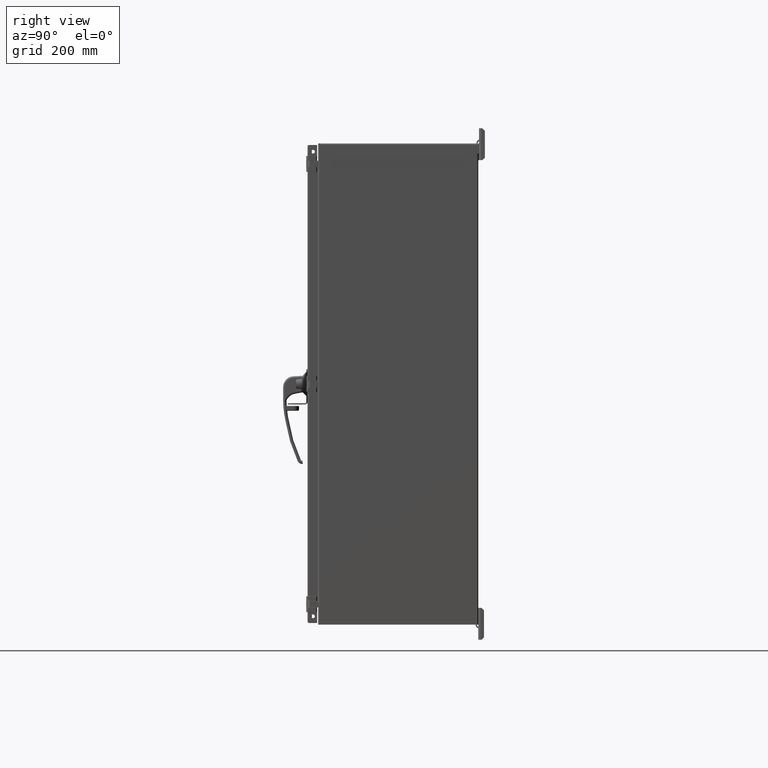
[diagram: clean part render]
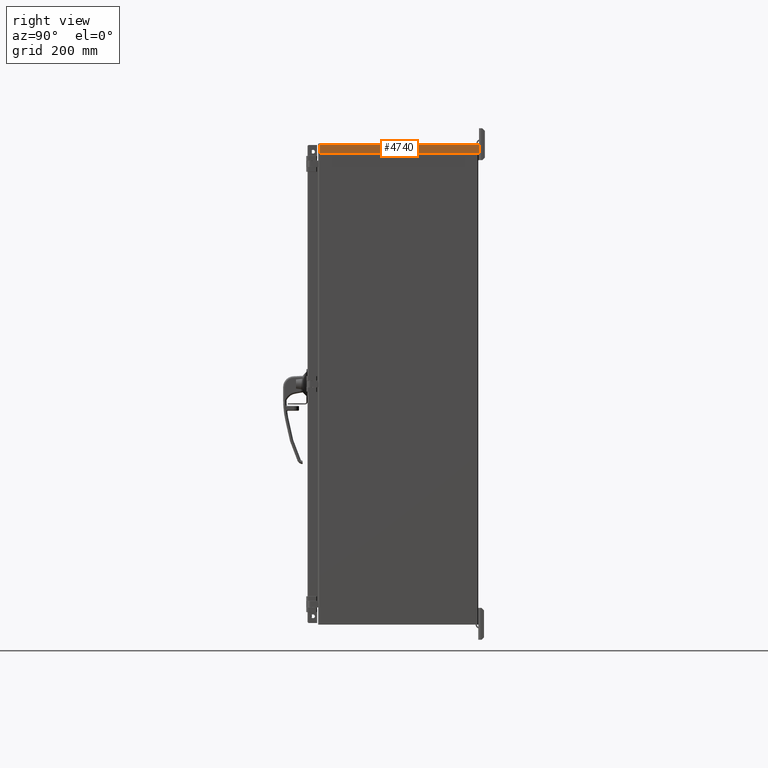
[diagram: same view with one face highlighted and labeled with its STEP entity id]
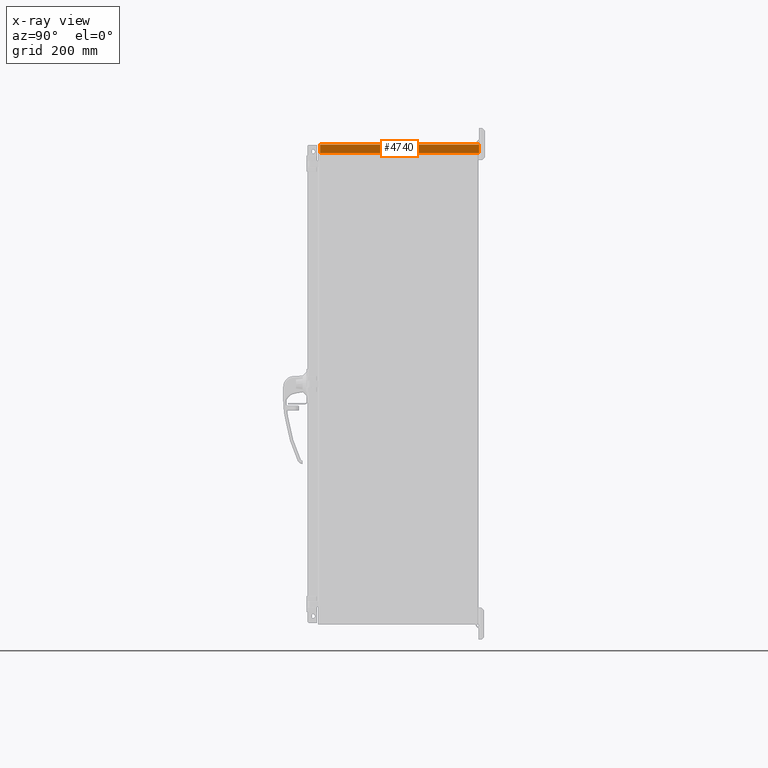
[diagram: x-ray of the same camera — body ghosted, the highlighted face saturated]
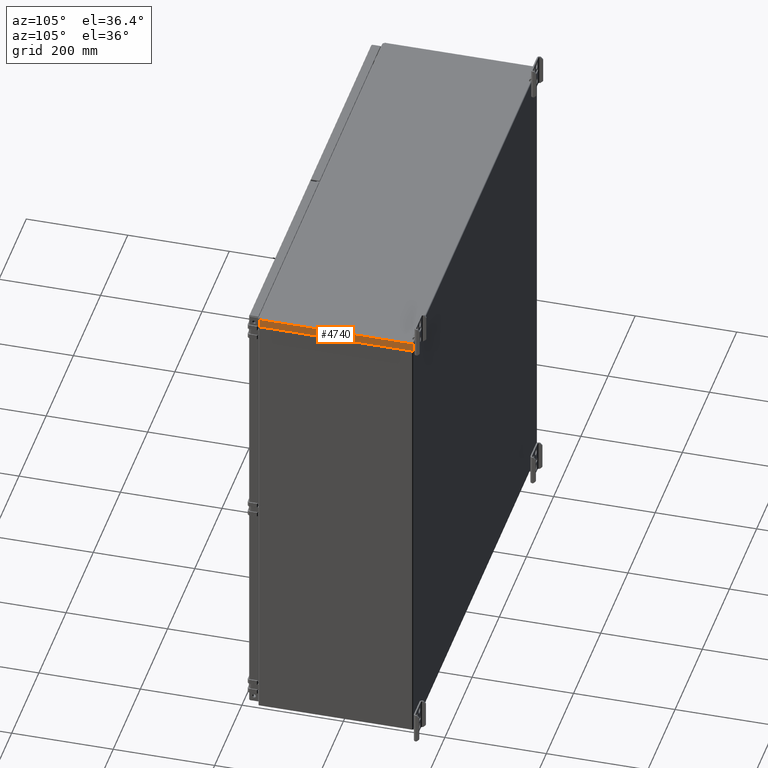
[diagram: same view with one face highlighted and labeled with its STEP entity id]
A machine part, right view. The second image highlights one B-rep face of the part: STEP entity #4740.
The next image is the same camera in x-ray: the body ghosted, the highlighted face saturated — about 0% of this face is hidden behind the body in this view.
A second angle (auxiliary view) of the same face is appended — the face is thin or edge-on in the first view.
In plain terms, the highlighted planar face has unit normal (1, 0, -0).
Its self-contained STEP definition (entity closure, byte-faithful):
#4740 = ADVANCED_FACE( '', ( #9497 ), #9498, .T. );
#9497 = FACE_OUTER_BOUND( '', #18870, .T. );
#9498 = PLANE( '', #18871 );
#18870 = EDGE_LOOP( '', ( #33377, #33378, #33379, #33380, #33381 ) );
#18871 = AXIS2_PLACEMENT_3D( '', #33382, #33383, #33384 );
#33377 = ORIENTED_EDGE( '', *, *, #38304, .F. );
#33378 = ORIENTED_EDGE( '', *, *, #38418, .T. );
#33379 = ORIENTED_EDGE( '', *, *, #36966, .T. );
#33380 = ORIENTED_EDGE( '', *, *, #38323, .T. );
#33381 = ORIENTED_EDGE( '', *, *, #38406, .T. );
#33382 = CARTESIAN_POINT( '', ( 459.120875000000, 152.400000000000, 0.127202221065881 ) );
#33383 = DIRECTION( '', ( 1.00000000000000, 0.000000000000000, -6.12323399573677E-017 ) );
#33384 = DIRECTION( '', ( -6.12323399573677E-017, 0.000000000000000, -1.00000000000000 ) );
#36966 = EDGE_CURVE( '', #43571, #43568, #43572, .T. );
#38304 = EDGE_CURVE( '', #45228, #45224, #45230, .F. );
#38323 = EDGE_CURVE( '', #43568, #39685, #45249, .T. );
#38406 = EDGE_CURVE( '', #39685, #45224, #45332, .T. );
#38418 = EDGE_CURVE( '', #45228, #43571, #45346, .T. );
#39685 = VERTEX_POINT( '', #48599 );
#43568 = VERTEX_POINT( '', #57931 );
#43571 = VERTEX_POINT( '', #57935 );
#43572 = LINE( '', #57936, #57937 );
#45224 = VERTEX_POINT( '', #61854 );
#45228 = VERTEX_POINT( '', #61859 );
#45230 = LINE( '', #61862, #61863 );
#45249 = LINE( '', #61894, #61895 );
#45332 = LINE( '', #62003, #62004 );
#45346 = LINE( '', #62021, #62022 );
#48599 = CARTESIAN_POINT( '', ( 459.120875000000, 150.063200000000, -0.812800000000000 ) );
#57931 = CARTESIAN_POINT( '', ( 459.120875000000, 152.400000000000, -0.812800000000000 ) );
#57935 = CARTESIAN_POINT( '', ( 459.120875000000, 152.400000000000, -17.5260000000006 ) );
#57936 = CARTESIAN_POINT( '', ( 459.120875000000, 152.400000000000, 0.127202221065881 ) );
#57937 = VECTOR( '', #64573, 1000.00000000000 );
#61854 = CARTESIAN_POINT( '', ( 459.120875000000, -150.114000000000, -0.812800000000000 ) );
#61859 = CARTESIAN_POINT( '', ( 459.120875000000, -150.114000000000, -17.5260000000006 ) );
#61862 = CARTESIAN_POINT( '', ( 459.120875000000, -150.114000000000, 0.127202221065885 ) );
#61863 = VECTOR( '', #65447, 1000.00000000000 );
#61894 = CARTESIAN_POINT( '', ( 459.120875000000, 152.400000000000, -0.812800000000000 ) );
#61895 = VECTOR( '', #65457, 1000.00000000000 );
#62003 = CARTESIAN_POINT( '', ( 459.120875000000, 152.400000000000, -0.812800000000000 ) );
#62004 = VECTOR( '', #65491, 1000.00000000000 );
#62021 = CARTESIAN_POINT( '', ( 459.120875000000, -152.400000000000, -17.5260000000006 ) );
#62022 = VECTOR( '', #65498, 1000.00000000000 );
#64573 = DIRECTION( '', ( 6.12323399573677E-017, 0.000000000000000, 1.00000000000000 ) );
#65447 = DIRECTION( '', ( -6.12323399573677E-017, 0.000000000000000, -1.00000000000000 ) );
#65457 = DIRECTION( '', ( 0.000000000000000, -1.00000000000000, 0.000000000000000 ) );
#65491 = DIRECTION( '', ( 0.000000000000000, -1.00000000000000, 0.000000000000000 ) );
#65498 = DIRECTION( '', ( 0.000000000000000, 1.00000000000000, 0.000000000000000 ) );